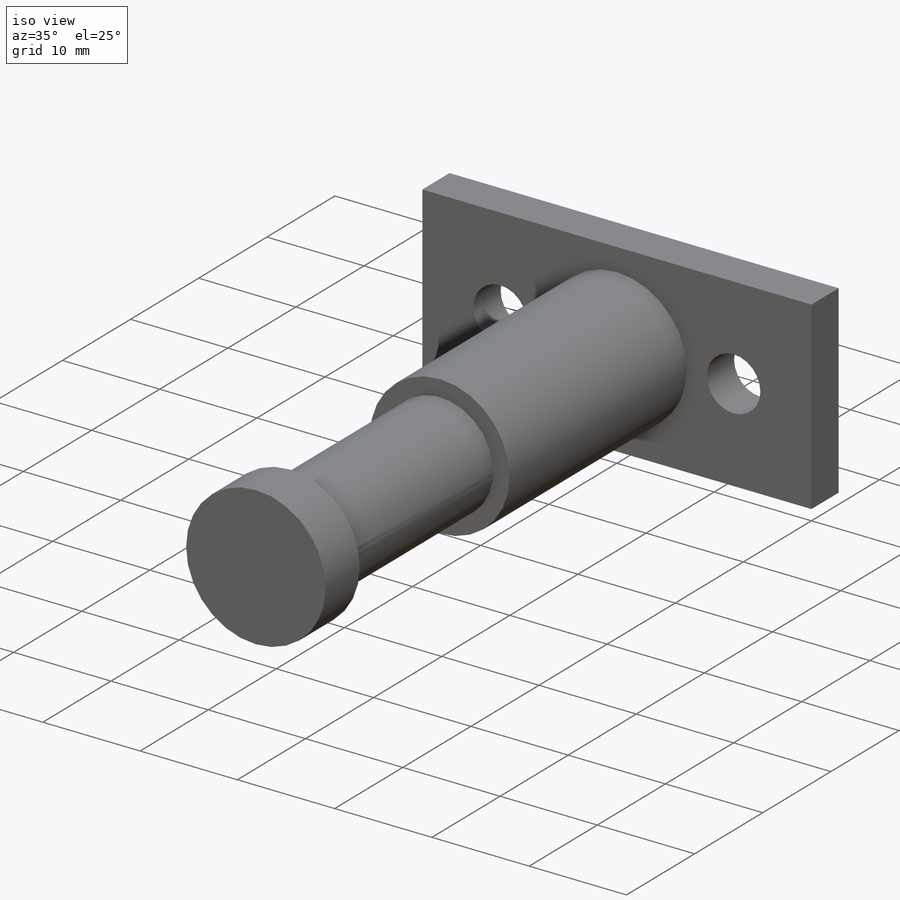
[diagram: iso view]
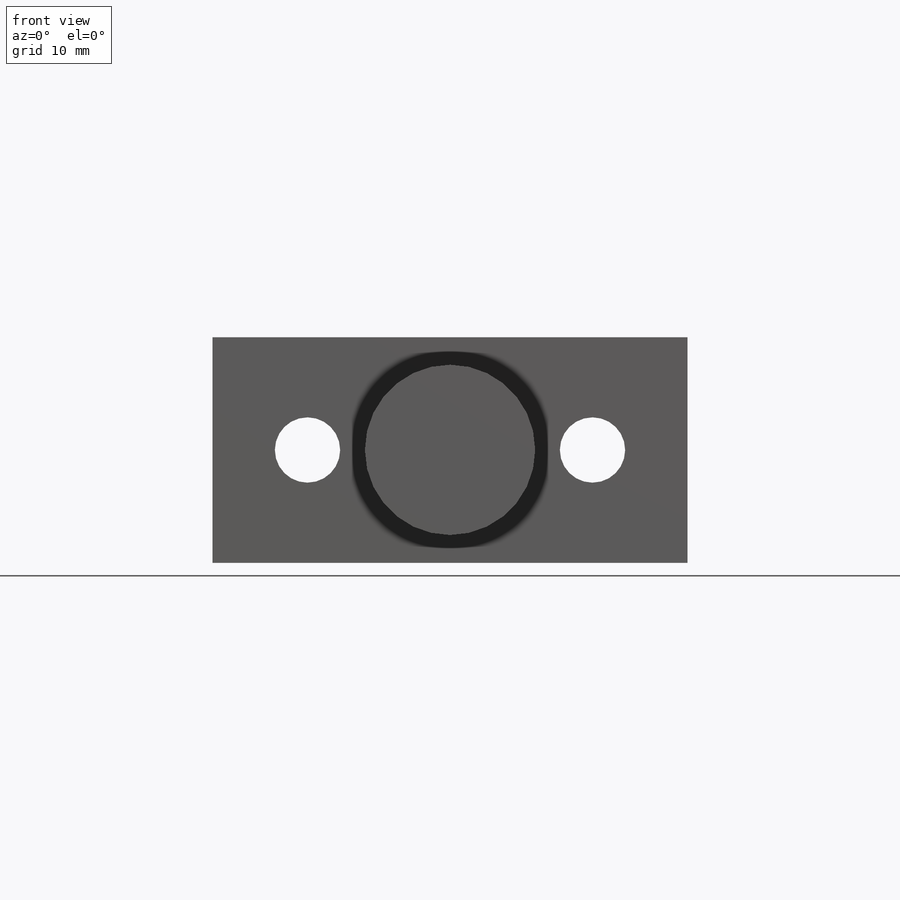
[diagram: front view]
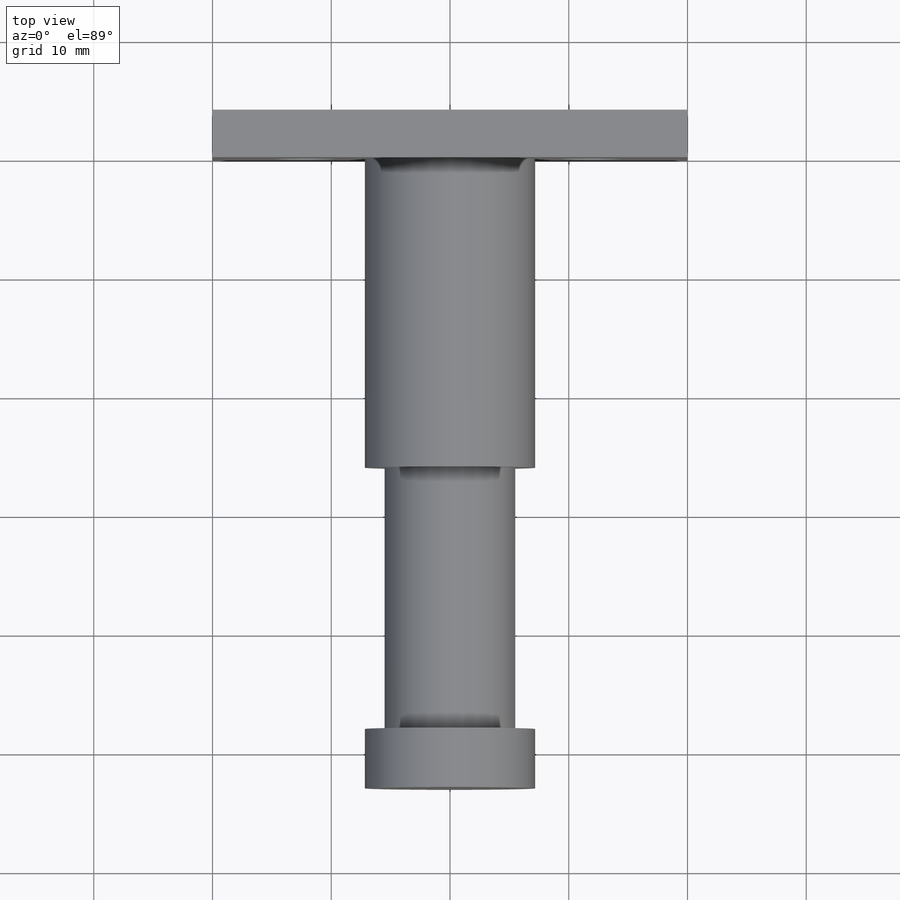
[diagram: top view]
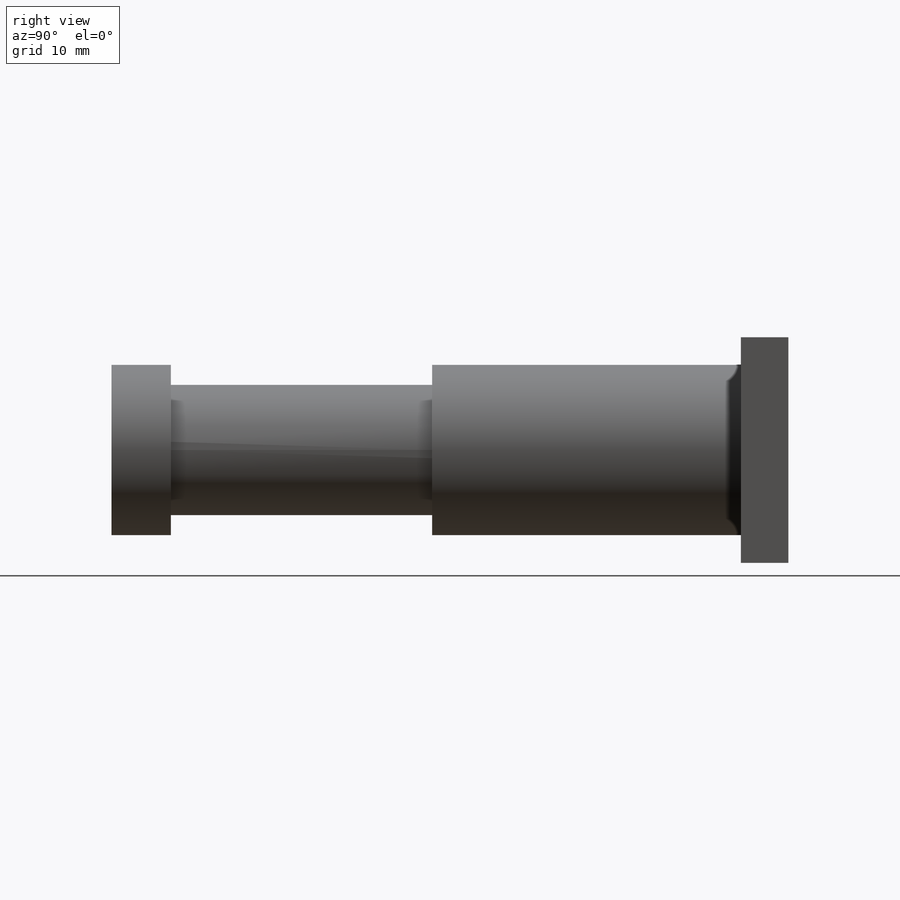
[diagram: right view]
SOLIDWORKS PART (.sldprt)
format: sldprt  version: not decoded by parser v0  size: 182,272 bytes
history: native  units: mm
features: sketch x4, extrude x4, material x1 (+11 scaffold rows collapsed)
feature tree (20):
  scaffold x11  (default folders/planes/origin — collapsed)
  material  "6063-T5"
  sketch  "Sketch1"  dims[c1.D3=10.0mm c1.D4=5.5mm c1.D1=~47.957344mm c1.D2=~61.132439mm c2.D1=19.0mm c2.D2=40.0mm c2.D5=8.0mm c2.D6=8.0mm]
  extrude  "Boss-Extrude1"  Depth=4mm
  sketch  "Sketch2"  dims[D1=14.341mm]
  extrude  "Boss-Extrude2"  Depth=26mm
  sketch  "Sketch3"  dims[D1=11.0mm]
  extrude  "Boss-Extrude3"  Depth=22mm
  sketch  "Sketch4"  dims[D1=~15.572236mm]
  extrude  "Boss-Extrude4"  Depth=5mm
decode coverage: 8 of 8 modeling features carry decoded parameters
note: ~ marks probable driven/reference dimensions
note: suppression state not decoded; provenance and decode notes live in map.json
